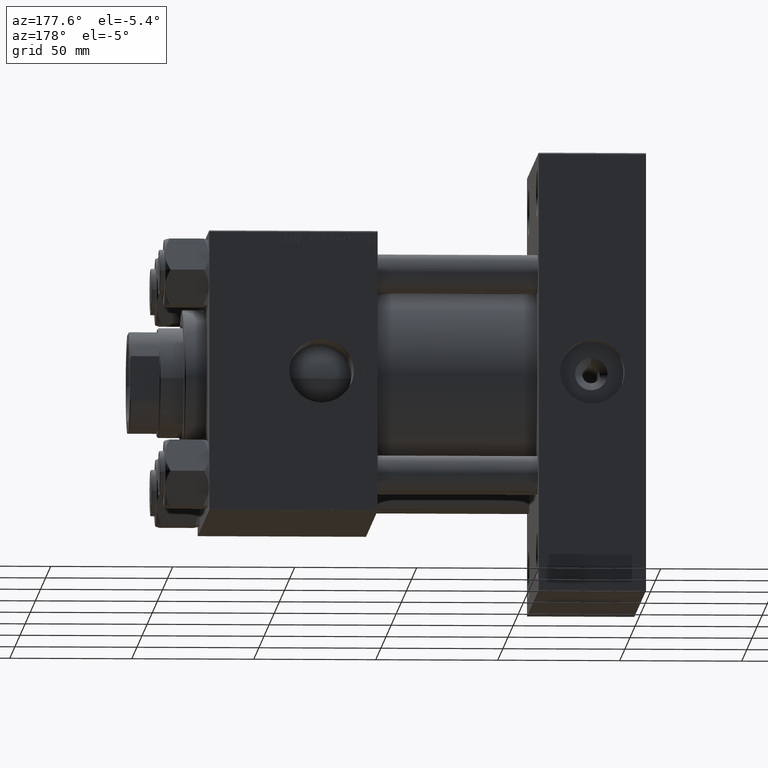
[diagram: clean part render]
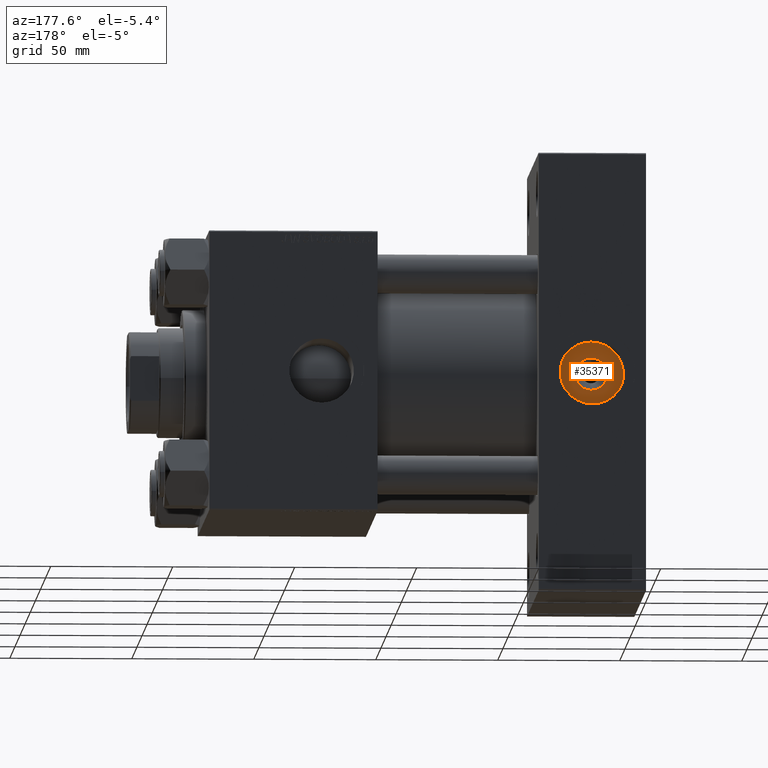
[diagram: same view with one face highlighted and labeled with its STEP entity id]
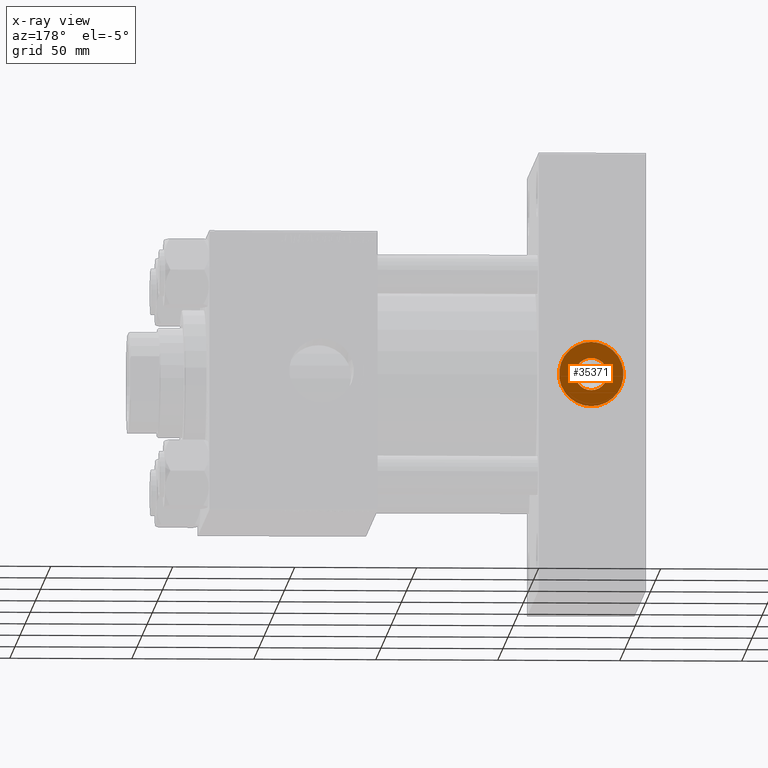
[diagram: x-ray of the same camera — body ghosted, the highlighted face saturated]
A machine part, auxiliary view. The second image highlights one B-rep face of the part: STEP entity #35371.
The next image is the same camera in x-ray: the body ghosted, the highlighted face saturated — about 0% of this face is hidden behind the body in this view.
In plain terms, the highlighted planar face has unit normal (0, 1, 0).
Its self-contained STEP definition (entity closure, byte-faithful):
#254 = AXIS2_PLACEMENT_3D ( 'NONE', #44812, #9889, #29781 ) ;
#2369 = DIRECTION ( 'NONE',  ( 0.000000000000000000, -0.000000000000000000, 1.000000000000000000 ) ) ;
#3048 = EDGE_LOOP ( 'NONE', ( #46472, #33999 ) ) ;
#3388 = EDGE_LOOP ( 'NONE', ( #37273, #27475 ) ) ;
#4497 = VERTEX_POINT ( 'NONE', #49800 ) ;
#5267 = EDGE_CURVE ( 'NONE', #44475, #34190, #5894, .T. ) ;
#5894 = CIRCLE ( 'NONE', #49034, 13.22000000000000419 ) ;
#6104 = CARTESIAN_POINT ( 'NONE',  ( 22.00000000000000000, 46.50000000000000000, 0.000000000000000000 ) ) ;
#6723 = CARTESIAN_POINT ( 'NONE',  ( 22.00000000000000000, 46.50000000000000000, 0.000000000000000000 ) ) ;
#7600 = EDGE_CURVE ( 'NONE', #45792, #4497, #10027, .T. ) ;
#8405 = CIRCLE ( 'NONE', #254, 13.22000000000000419 ) ;
#9889 = DIRECTION ( 'NONE',  ( 0.000000000000000000, 1.000000000000000000, 0.000000000000000000 ) ) ;
#10027 = CIRCLE ( 'NONE', #25500, 6.640000000000062741 ) ;
#10938 = AXIS2_PLACEMENT_3D ( 'NONE', #15093, #34753, #30426 ) ;
#13834 = FACE_OUTER_BOUND ( 'NONE', #3048, .T. ) ;
#14584 = CARTESIAN_POINT ( 'NONE',  ( 22.00000000000000000, 46.50000000000000000, 0.000000000000000000 ) ) ;
#15093 = CARTESIAN_POINT ( 'NONE',  ( 22.00000000000000000, 46.50000000000000000, 0.000000000000000000 ) ) ;
#15361 = CARTESIAN_POINT ( 'NONE',  ( 22.00000000000000000, 46.50000000000000000, 13.22000000000000419 ) ) ;
#20048 = AXIS2_PLACEMENT_3D ( 'NONE', #14584, #21753, #2369 ) ;
#21753 = DIRECTION ( 'NONE',  ( 0.000000000000000000, 1.000000000000000000, 0.000000000000000000 ) ) ;
#22286 = DIRECTION ( 'NONE',  ( 0.000000000000000000, 1.000000000000000000, 0.000000000000000000 ) ) ;
#25500 = AXIS2_PLACEMENT_3D ( 'NONE', #6104, #40533, #48688 ) ;
#26369 = EDGE_CURVE ( 'NONE', #34190, #44475, #8405, .T. ) ;
#27475 = ORIENTED_EDGE ( 'NONE', *, *, #7600, .T. ) ;
#29781 = DIRECTION ( 'NONE',  ( 0.000000000000000000, 0.000000000000000000, 1.000000000000000000 ) ) ;
#30199 = DIRECTION ( 'NONE',  ( 0.000000000000000000, 0.000000000000000000, 1.000000000000000000 ) ) ;
#30426 = DIRECTION ( 'NONE',  ( 0.000000000000000000, 0.000000000000000000, 1.000000000000000000 ) ) ;
#33999 = ORIENTED_EDGE ( 'NONE', *, *, #26369, .T. ) ;
#34190 = VERTEX_POINT ( 'NONE', #43852 ) ;
#34753 = DIRECTION ( 'NONE',  ( -0.000000000000000000, -1.000000000000000000, -0.000000000000000000 ) ) ;
#35371 = ADVANCED_FACE ( 'NONE', ( #41125, #13834 ), #44951, .T. ) ;
#37273 = ORIENTED_EDGE ( 'NONE', *, *, #37841, .T. ) ;
#37841 = EDGE_CURVE ( 'NONE', #4497, #45792, #46771, .T. ) ;
#40533 = DIRECTION ( 'NONE',  ( -0.000000000000000000, -1.000000000000000000, -0.000000000000000000 ) ) ;
#40698 = CARTESIAN_POINT ( 'NONE',  ( 22.00000000000000000, 46.50000000000000000, -6.640000000000062741 ) ) ;
#41125 = FACE_BOUND ( 'NONE', #3388, .T. ) ;
#43852 = CARTESIAN_POINT ( 'NONE',  ( 22.00000000000000000, 46.50000000000000000, -13.22000000000000419 ) ) ;
#44475 = VERTEX_POINT ( 'NONE', #15361 ) ;
#44812 = CARTESIAN_POINT ( 'NONE',  ( 22.00000000000000000, 46.50000000000000000, 0.000000000000000000 ) ) ;
#44951 = PLANE ( 'NONE',  #20048 ) ;
#45792 = VERTEX_POINT ( 'NONE', #40698 ) ;
#46472 = ORIENTED_EDGE ( 'NONE', *, *, #5267, .T. ) ;
#46771 = CIRCLE ( 'NONE', #10938, 6.640000000000062741 ) ;
#48688 = DIRECTION ( 'NONE',  ( 0.000000000000000000, 0.000000000000000000, 1.000000000000000000 ) ) ;
#49034 = AXIS2_PLACEMENT_3D ( 'NONE', #6723, #22286, #30199 ) ;
#49800 = CARTESIAN_POINT ( 'NONE',  ( 22.00000000000000000, 46.50000000000000000, 6.640000000000062741 ) ) ;